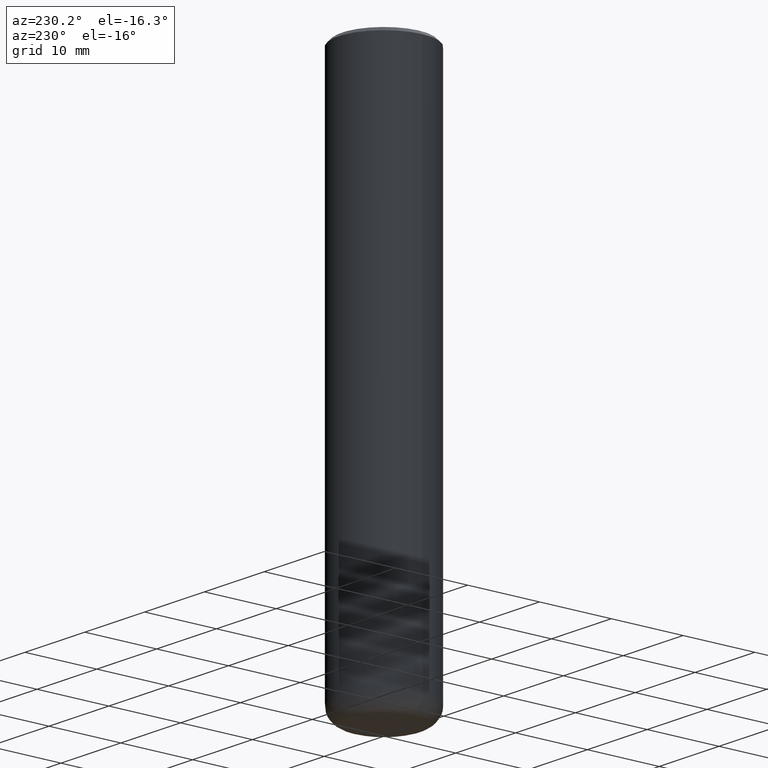
[diagram: clean part render]
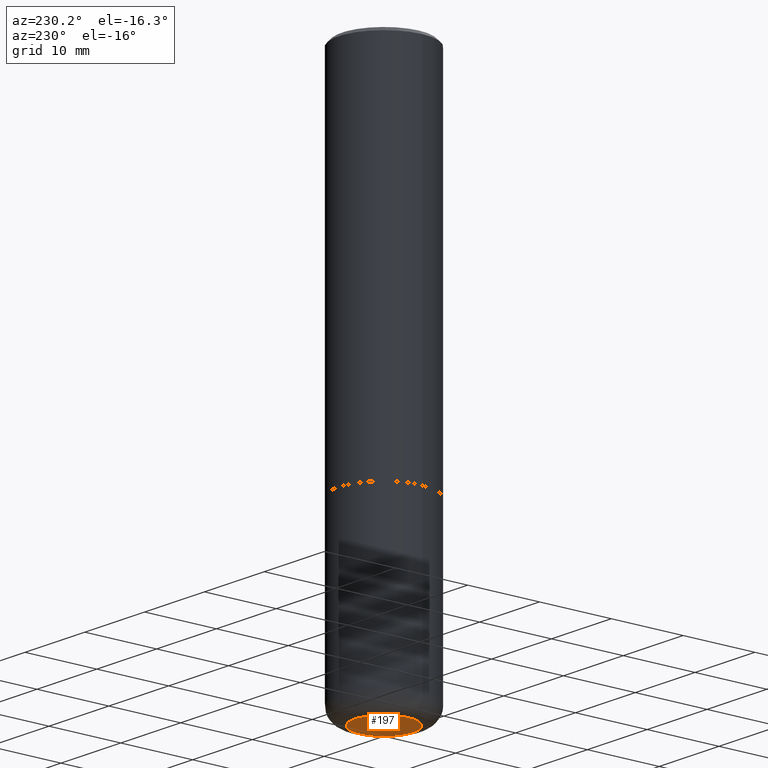
[diagram: same view with one face highlighted and labeled with its STEP entity id]
A machine part, auxiliary view. The second image highlights one B-rep face of the part: STEP entity #197.
In plain terms, the highlighted planar face has unit normal (0, -0, -1).
Its self-contained STEP definition (entity closure, byte-faithful):
#10 = CARTESIAN_POINT ( 'NONE',  ( 1.449005363638153220E-28, -2.300140402884442060E-16, -2.999999999999999556 ) ) ;
#50 = DIRECTION ( 'NONE',  ( -2.445468806185136597E-29, 3.491481338843145583E-15, 1.000000000000000000 ) ) ;
#55 = CIRCLE ( 'NONE', #401, 0.1600000000000000033 ) ;
#71 = DIRECTION ( 'NONE',  ( 2.438088387897960049E-29, -3.491481338843145188E-15, -1.000000000000000000 ) ) ;
#112 = CARTESIAN_POINT ( 'NONE',  ( 7.336406418555408669E-29, -1.047444401652943478E-14, -2.999999999999999556 ) ) ;
#118 = AXIS2_PLACEMENT_3D ( 'NONE', #239, #214, #209 ) ;
#143 = CIRCLE ( 'NONE', #118, 0.1600000000000000033 ) ;
#168 = VERTEX_POINT ( 'NONE', #251 ) ;
#183 = DIRECTION ( 'NONE',  ( 1.000000000000000000, -6.982962677686271444E-15, 0.000000000000000000 ) ) ;
#194 = PLANE ( 'NONE',  #322 ) ;
#197 = ADVANCED_FACE ( 'NONE', ( #368 ), #194, .T. ) ;
#203 = CARTESIAN_POINT ( 'NONE',  ( -0.1600000000000000033, -8.860714747973291991E-15, -2.999999999999999556 ) ) ;
#209 = DIRECTION ( 'NONE',  ( 1.000000000000000000, -6.982962677686271444E-15, 0.000000000000000000 ) ) ;
#214 = DIRECTION ( 'NONE',  ( -2.445468806185136597E-29, 3.491481338843145583E-15, 1.000000000000000000 ) ) ;
#239 = CARTESIAN_POINT ( 'NONE',  ( 7.336406418555408669E-29, -1.047444401652943478E-14, -2.999999999999999556 ) ) ;
#251 = CARTESIAN_POINT ( 'NONE',  ( 0.1600000000000000033, -1.159171804495923808E-14, -2.999999999999999556 ) ) ;
#263 = VERTEX_POINT ( 'NONE', #203 ) ;
#277 = EDGE_LOOP ( 'NONE', ( #386, #348 ) ) ;
#318 = EDGE_CURVE ( 'NONE', #168, #263, #55, .T. ) ;
#322 = AXIS2_PLACEMENT_3D ( 'NONE', #10, #71, #360 ) ;
#348 = ORIENTED_EDGE ( 'NONE', *, *, #362, .F. ) ;
#360 = DIRECTION ( 'NONE',  ( -1.000000000000000000, 6.982962677686265922E-15, -4.876176775795935793E-29 ) ) ;
#362 = EDGE_CURVE ( 'NONE', #263, #168, #143, .T. ) ;
#368 = FACE_OUTER_BOUND ( 'NONE', #277, .T. ) ;
#386 = ORIENTED_EDGE ( 'NONE', *, *, #318, .F. ) ;
#401 = AXIS2_PLACEMENT_3D ( 'NONE', #112, #50, #183 ) ;